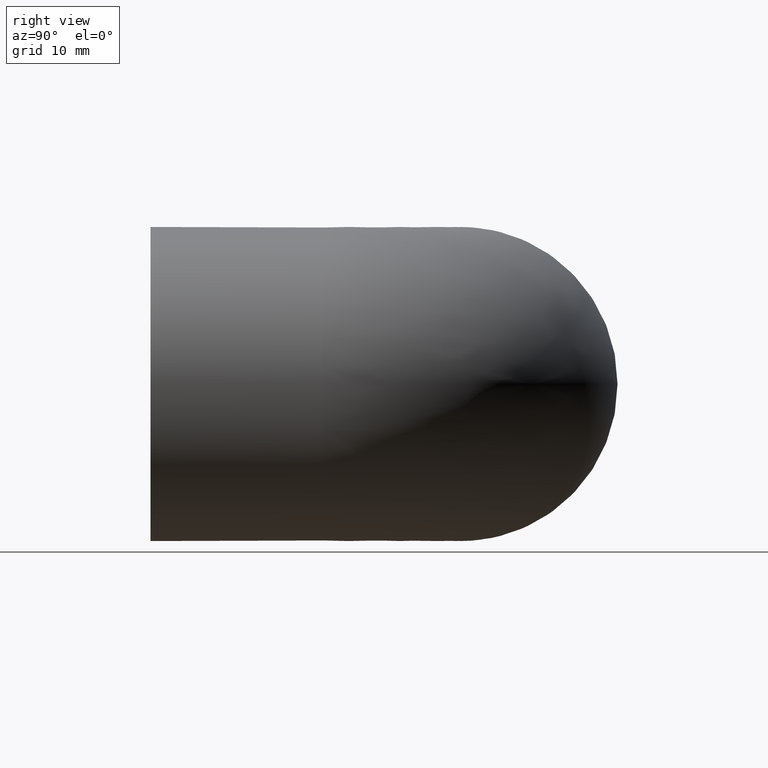
[diagram: clean part render]
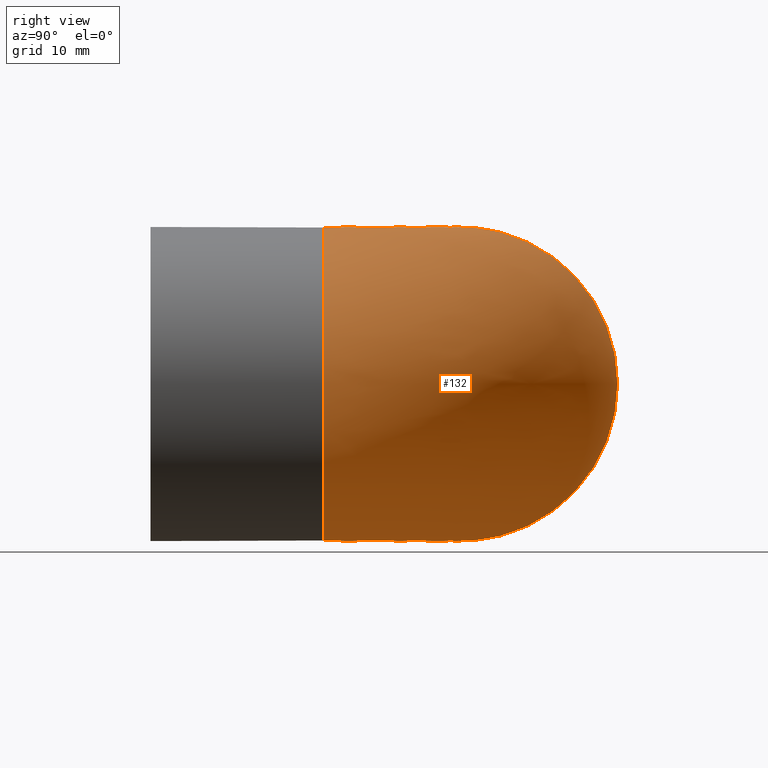
[diagram: same view with one face highlighted and labeled with its STEP entity id]
A machine part, right view. The second image highlights one B-rep face of the part: STEP entity #132.
In plain terms, the highlighted face is a freeform B-spline surface patch.
Its self-contained STEP definition (entity closure, byte-faithful):
#16=(
BOUNDED_SURFACE()
B_SPLINE_SURFACE(2,2,((#226,#227,#228),(#229,#230,#231),(#232,#233,#234),
(#235,#236,#237),(#238,#239,#240),(#241,#242,#243),(#244,#245,#246),(#247,
#248,#249),(#250,#251,#252)),.UNSPECIFIED.,.F.,.F.,.F.)
B_SPLINE_SURFACE_WITH_KNOTS((3,2,2,2,3),(3,3),(-2.62965075460566,-1.31482537730283,
0.,1.31482537730283,2.62965075460566),(1.5707963267949,3.14159265358979),
 .UNSPECIFIED.)
GEOMETRIC_REPRESENTATION_ITEM()
RATIONAL_B_SPLINE_SURFACE(((1.,0.707106781186548,1.),(0.791575909743001,
0.559728693603187,0.791575909743001),(1.,0.707106781186548,1.),(0.791575909743,
0.559728693603185,0.791575909743),(1.,0.707106781186548,1.),(0.791575909743,
0.559728693603185,0.791575909743),(1.,0.707106781186548,1.),(0.791575909743001,
0.559728693603187,0.791575909743001),(1.,0.707106781186548,1.)))
REPRESENTATION_ITEM('')
SURFACE()
);
#40=FACE_OUTER_BOUND('',#56,.T.);
#56=EDGE_LOOP('',(#111,#112));
#73=CIRCLE('',#151,19.5);
#74=CIRCLE('',#152,19.5);
#84=VERTEX_POINT('',#253);
#85=VERTEX_POINT('',#254);
#95=EDGE_CURVE('',#84,#85,#73,.T.);
#96=EDGE_CURVE('',#85,#84,#74,.T.);
#111=ORIENTED_EDGE('',*,*,#95,.T.);
#112=ORIENTED_EDGE('',*,*,#96,.T.);
#132=ADVANCED_FACE('',(#40),#16,.F.);
#151=AXIS2_PLACEMENT_3D('',#255,#186,#187);
#152=AXIS2_PLACEMENT_3D('',#256,#188,#189);
#186=DIRECTION('center_axis',(1.,0.,0.));
#187=DIRECTION('ref_axis',(0.,0.,-1.));
#188=DIRECTION('center_axis',(6.12323399573677E-17,1.,0.));
#189=DIRECTION('ref_axis',(0.,0.,-1.));
#226=CARTESIAN_POINT('Ctrl Pts',(-17.,-17.,9.5524865872714));
#227=CARTESIAN_POINT('Ctrl Pts',(-17.,-17.,9.5524865872714));
#228=CARTESIAN_POINT('Ctrl Pts',(-17.,-17.,9.5524865872714));
#229=CARTESIAN_POINT('Ctrl Pts',(-17.,-9.62579117093425,22.6759334457219));
#230=CARTESIAN_POINT('Ctrl Pts',(-9.62579117093425,-9.62579117093425,22.6759334457219));
#231=CARTESIAN_POINT('Ctrl Pts',(-9.62579117093425,-17.,22.6759334457219));
#232=CARTESIAN_POINT('Ctrl Pts',(-17.,4.93710441453287,18.8646494799135));
#233=CARTESIAN_POINT('Ctrl Pts',(4.93710441453287,4.93710441453287,18.8646494799135));
#234=CARTESIAN_POINT('Ctrl Pts',(4.93710441453287,-17.,18.8646494799135));
#235=CARTESIAN_POINT('Ctrl Pts',(-17.,19.5,15.053365514105));
#236=CARTESIAN_POINT('Ctrl Pts',(19.5,19.5,15.053365514105));
#237=CARTESIAN_POINT('Ctrl Pts',(19.5,-17.,15.053365514105));
#238=CARTESIAN_POINT('Ctrl Pts',(-17.,19.5,0.));
#239=CARTESIAN_POINT('Ctrl Pts',(19.5,19.5,0.));
#240=CARTESIAN_POINT('Ctrl Pts',(19.5,-17.,0.));
#241=CARTESIAN_POINT('Ctrl Pts',(-17.,19.5,-15.053365514105));
#242=CARTESIAN_POINT('Ctrl Pts',(19.5,19.5,-15.053365514105));
#243=CARTESIAN_POINT('Ctrl Pts',(19.5,-17.,-15.053365514105));
#244=CARTESIAN_POINT('Ctrl Pts',(-17.,4.93710441453287,-18.8646494799135));
#245=CARTESIAN_POINT('Ctrl Pts',(4.93710441453287,4.93710441453287,-18.8646494799135));
#246=CARTESIAN_POINT('Ctrl Pts',(4.93710441453287,-17.,-18.8646494799135));
#247=CARTESIAN_POINT('Ctrl Pts',(-17.,-9.62579117093425,-22.6759334457219));
#248=CARTESIAN_POINT('Ctrl Pts',(-9.62579117093425,-9.62579117093425,-22.6759334457219));
#249=CARTESIAN_POINT('Ctrl Pts',(-9.62579117093425,-17.,-22.6759334457219));
#250=CARTESIAN_POINT('Ctrl Pts',(-17.,-17.,-9.5524865872714));
#251=CARTESIAN_POINT('Ctrl Pts',(-17.,-17.,-9.5524865872714));
#252=CARTESIAN_POINT('Ctrl Pts',(-17.,-17.,-9.5524865872714));
#253=CARTESIAN_POINT('',(-17.,-17.,-9.5524865872714));
#254=CARTESIAN_POINT('',(-17.,-17.,9.5524865872714));
#255=CARTESIAN_POINT('Origin',(-17.,0.,0.));
#256=CARTESIAN_POINT('Origin',(-1.04094977927525E-15,-17.,0.));